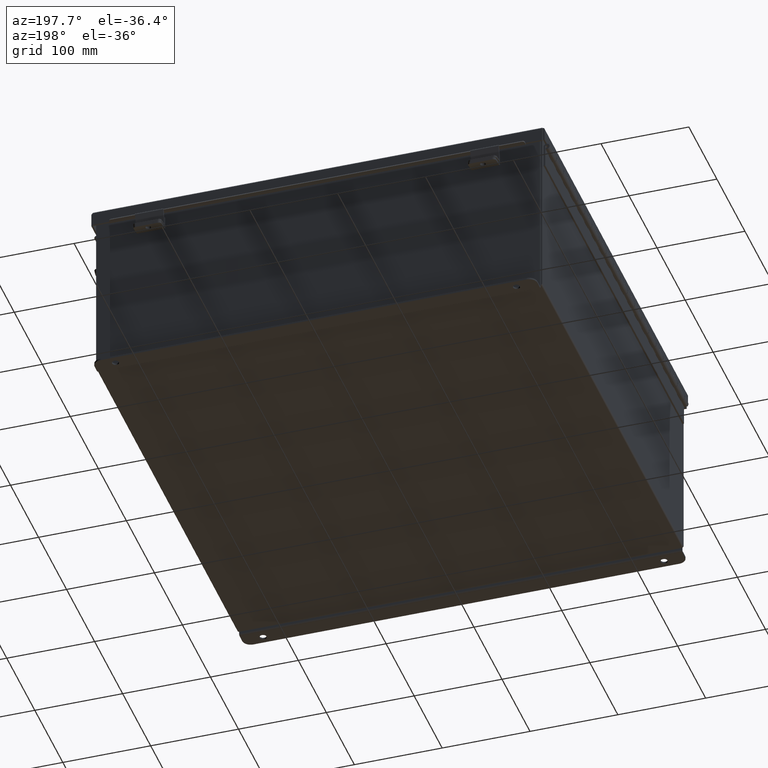
[diagram: clean part render]
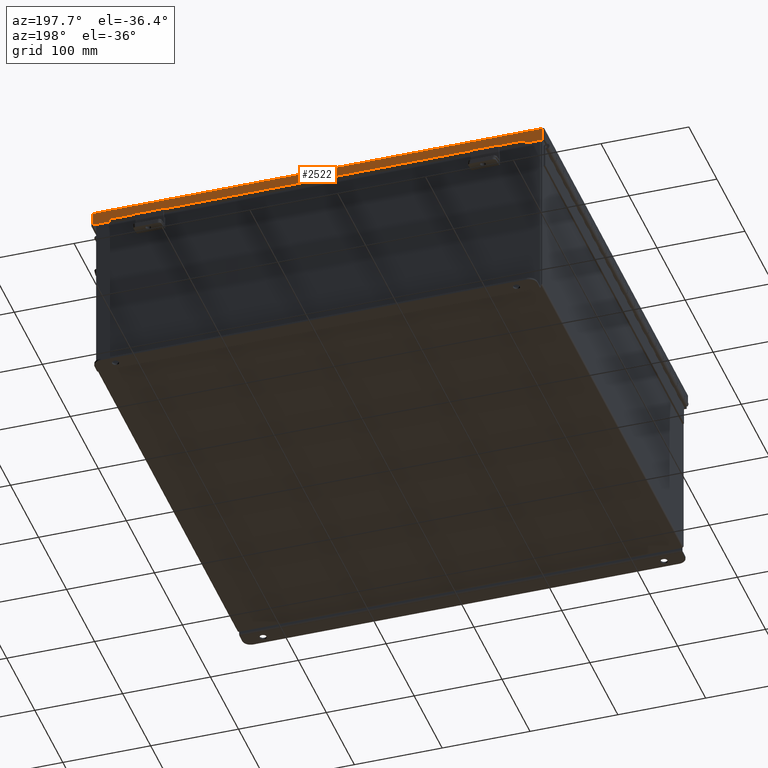
[diagram: same view with one face highlighted and labeled with its STEP entity id]
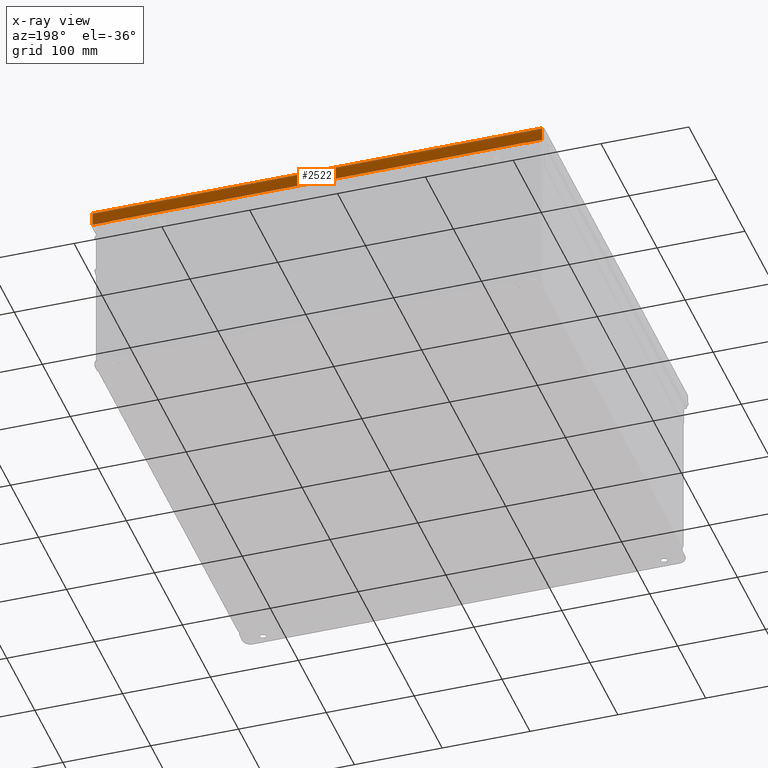
[diagram: x-ray of the same camera — body ghosted, the highlighted face saturated]
A machine part, auxiliary view. The second image highlights one B-rep face of the part: STEP entity #2522.
The next image is the same camera in x-ray: the body ghosted, the highlighted face saturated — about 0% of this face is hidden behind the body in this view.
In plain terms, the highlighted planar face has unit normal (-0, -1, -0).
Its self-contained STEP definition (entity closure, byte-faithful):
#338 = AXIS2_PLACEMENT_3D ( 'NONE', #20770, #19317, #13923 ) ;
#435 = LINE ( 'NONE', #12623, #17820 ) ;
#440 = LINE ( 'NONE', #4875, #9133 ) ;
#718 = LINE ( 'NONE', #18858, #19163 ) ;
#814 = ORIENTED_EDGE ( 'NONE', *, *, #14170, .T. ) ;
#1282 = VERTEX_POINT ( 'NONE', #5691 ) ;
#1417 = VERTEX_POINT ( 'NONE', #18991 ) ;
#1978 = CARTESIAN_POINT ( 'NONE',  ( -2.134256245050205600E-018, 10.15625000000000400, 0.6122999999999994000 ) ) ;
#2042 = DIRECTION ( 'NONE',  ( -1.000000000000000000, -2.258600338820354400E-033, -0.0000000000000000000 ) ) ;
#2170 = VERTEX_POINT ( 'NONE', #7013 ) ;
#2522 = ADVANCED_FACE ( 'NONE', ( #16469 ), #19041, .F. ) ;
#3019 = ORIENTED_EDGE ( 'NONE', *, *, #7258, .F. ) ;
#4076 = VECTOR ( 'NONE', #13709, 39.37007874015748100 ) ;
#4542 = VECTOR ( 'NONE', #7928, 39.37007874015748100 ) ;
#4871 = ORIENTED_EDGE ( 'NONE', *, *, #9674, .F. ) ;
#4875 = CARTESIAN_POINT ( 'NONE',  ( -9.324478932188130300, 10.15625000000000200, 0.5967115427318793200 ) ) ;
#4945 = VERTEX_POINT ( 'NONE', #8591 ) ;
#5545 = CARTESIAN_POINT ( 'NONE',  ( 9.324478932188135600, 10.15625000000000400, 0.6123000000000005100 ) ) ;
#5553 = EDGE_LOOP ( 'NONE', ( #4871, #17391, #3019, #8164, #814, #7128, #7646, #5777 ) ) ;
#5563 = CARTESIAN_POINT ( 'NONE',  ( 9.324478932188135600, 10.15625000000000200, 0.5967115427318793200 ) ) ;
#5691 = CARTESIAN_POINT ( 'NONE',  ( 9.324478932188135600, 10.15625000000000400, 0.5967115427318793200 ) ) ;
#5777 = ORIENTED_EDGE ( 'NONE', *, *, #12787, .F. ) ;
#5798 = VECTOR ( 'NONE', #14123, 39.37007874015748100 ) ;
#6168 = CARTESIAN_POINT ( 'NONE',  ( -9.324478932188130300, 10.15625000000000400, 0.6123000000000005100 ) ) ;
#6332 = LINE ( 'NONE', #1978, #5798 ) ;
#6661 = VERTEX_POINT ( 'NONE', #5545 ) ;
#6778 = DIRECTION ( 'NONE',  ( 1.000000000000000000, 1.821248483703466100E-033, 3.362274453740352500E-018 ) ) ;
#7013 = CARTESIAN_POINT ( 'NONE',  ( -10.07447893218813200, 10.15625000000000200, 0.01300000000000010700 ) ) ;
#7128 = ORIENTED_EDGE ( 'NONE', *, *, #9397, .T. ) ;
#7258 = EDGE_CURVE ( 'NONE', #1417, #4945, #17381, .T. ) ;
#7442 = DIRECTION ( 'NONE',  ( 7.009925220120717300E-014, -1.401985044024143500E-013, -1.000000000000000000 ) ) ;
#7646 = ORIENTED_EDGE ( 'NONE', *, *, #21035, .F. ) ;
#7928 = DIRECTION ( 'NONE',  ( 1.000000000000000000, 2.258600338820354400E-033, -0.0000000000000000000 ) ) ;
#8164 = ORIENTED_EDGE ( 'NONE', *, *, #20524, .F. ) ;
#8591 = CARTESIAN_POINT ( 'NONE',  ( 10.07447893218813600, 10.15625000000000400, 0.6123000000000005100 ) ) ;
#8604 = LINE ( 'NONE', #9644, #4542 ) ;
#9133 = VECTOR ( 'NONE', #10018, 39.37007874015748100 ) ;
#9397 = EDGE_CURVE ( 'NONE', #22083, #14233, #718, .T. ) ;
#9644 = CARTESIAN_POINT ( 'NONE',  ( 10.15625000000000200, 10.15625000000000200, 0.01300000000000010700 ) ) ;
#9674 = EDGE_CURVE ( 'NONE', #6661, #1282, #435, .T. ) ;
#10018 = DIRECTION ( 'NONE',  ( -7.009925220120440900E-014, 1.401985044024088200E-013, 1.000000000000000000 ) ) ;
#11011 = VERTEX_POINT ( 'NONE', #12756 ) ;
#11177 = LINE ( 'NONE', #16461, #19848 ) ;
#12623 = CARTESIAN_POINT ( 'NONE',  ( 9.324478932188135600, 10.15625000000000400, 0.6122999999999994000 ) ) ;
#12756 = CARTESIAN_POINT ( 'NONE',  ( -9.324478932188130300, 10.15625000000000400, 0.5967115427318793200 ) ) ;
#12787 = EDGE_CURVE ( 'NONE', #1282, #11011, #15302, .T. ) ;
#13633 = CARTESIAN_POINT ( 'NONE',  ( 10.07447893218813600, 10.15625000000000200, 7.649174382259936200E-015 ) ) ;
#13709 = DIRECTION ( 'NONE',  ( -0.0000000000000000000, 3.569293475308526100E-015, 1.000000000000000000 ) ) ;
#13923 = DIRECTION ( 'NONE',  ( 0.0000000000000000000, -3.569293475308526100E-015, -1.000000000000000000 ) ) ;
#13956 = EDGE_CURVE ( 'NONE', #6661, #4945, #6332, .T. ) ;
#14123 = DIRECTION ( 'NONE',  ( 1.000000000000000000, 1.821248483703466100E-033, 3.362274453740352500E-018 ) ) ;
#14170 = EDGE_CURVE ( 'NONE', #2170, #22083, #11177, .T. ) ;
#14233 = VERTEX_POINT ( 'NONE', #6168 ) ;
#15302 = LINE ( 'NONE', #5563, #18816 ) ;
#16461 = CARTESIAN_POINT ( 'NONE',  ( -10.07447893218813200, 10.15625000000000200, -3.606039351636827200E-014 ) ) ;
#16469 = FACE_OUTER_BOUND ( 'NONE', #5553, .T. ) ;
#17381 = LINE ( 'NONE', #13633, #4076 ) ;
#17391 = ORIENTED_EDGE ( 'NONE', *, *, #13956, .T. ) ;
#17820 = VECTOR ( 'NONE', #7442, 39.37007874015748100 ) ;
#18212 = DIRECTION ( 'NONE',  ( 0.0000000000000000000, 3.569293475308526100E-015, 1.000000000000000000 ) ) ;
#18389 = CARTESIAN_POINT ( 'NONE',  ( -10.07447893218813200, 10.15625000000000400, 0.6122999999999994000 ) ) ;
#18816 = VECTOR ( 'NONE', #2042, 39.37007874015748100 ) ;
#18858 = CARTESIAN_POINT ( 'NONE',  ( -2.134256245050205600E-018, 10.15625000000000400, 0.6122999999999994000 ) ) ;
#18991 = CARTESIAN_POINT ( 'NONE',  ( 10.07447893218813600, 10.15625000000000200, 0.01300000000000775700 ) ) ;
#19041 = PLANE ( 'NONE',  #338 ) ;
#19163 = VECTOR ( 'NONE', #6778, 39.37007874015748100 ) ;
#19317 = DIRECTION ( 'NONE',  ( -1.185774594731585500E-034, -1.000000000000000000, 3.569293475308526100E-015 ) ) ;
#19848 = VECTOR ( 'NONE', #18212, 39.37007874015748100 ) ;
#20524 = EDGE_CURVE ( 'NONE', #2170, #1417, #8604, .T. ) ;
#20770 = CARTESIAN_POINT ( 'NONE',  ( 0.0000000000000000000, 10.15625000000000200, -3.715313271383398100E-014 ) ) ;
#21035 = EDGE_CURVE ( 'NONE', #11011, #14233, #440, .T. ) ;
#22083 = VERTEX_POINT ( 'NONE', #18389 ) ;